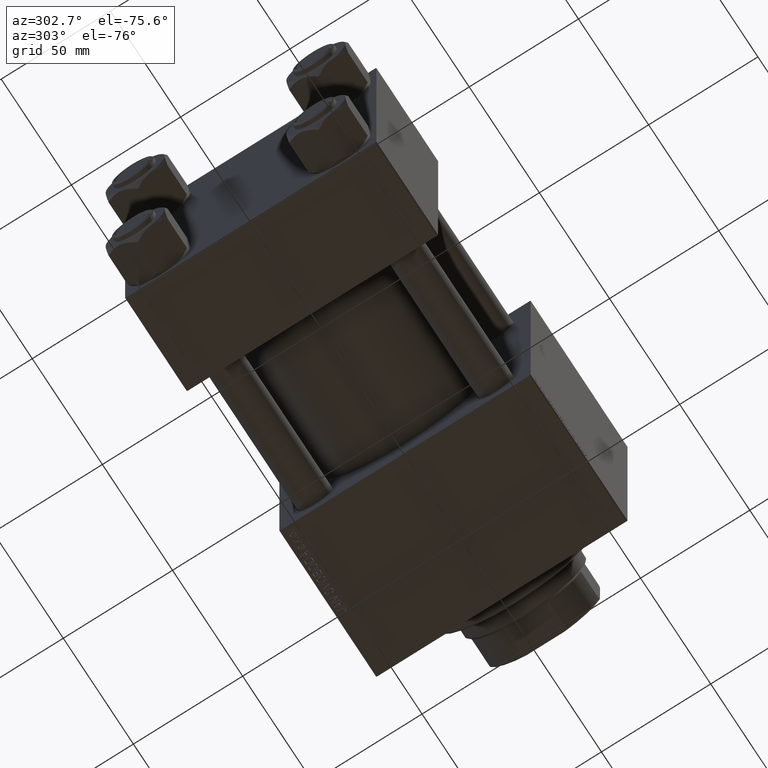
[diagram: clean part render]
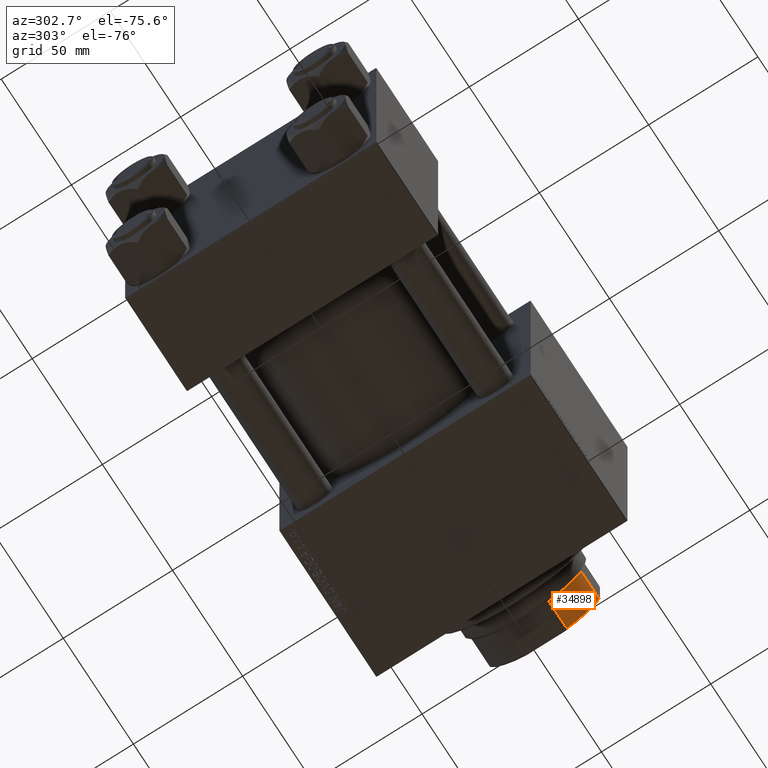
[diagram: same view with one face highlighted and labeled with its STEP entity id]
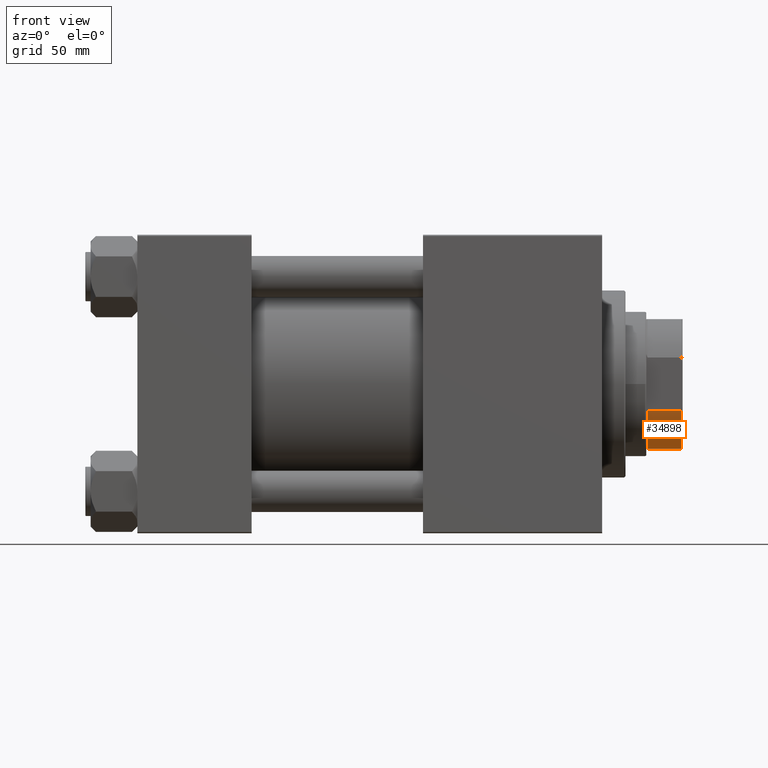
[diagram: same view with one face highlighted and labeled with its STEP entity id]
A machine part, auxiliary view. The second image highlights one B-rep face of the part: STEP entity #34898.
A second angle (front view) of the same face is appended — the face is thin or edge-on in the first view.
In plain terms, the highlighted cylindrical surface (partial cylindrical patch) has radius 27 mm, axis along (1, 0, 0).
Its self-contained STEP definition (entity closure, byte-faithful):
#119 = DIRECTION ( 'NONE',  ( 1.000000000000000000, 0.000000000000000000, 0.000000000000000000 ) ) ;
#921 = DIRECTION ( 'NONE',  ( -0.000000000000000000, -0.000000000000000000, -1.000000000000000000 ) ) ;
#1268 = VERTEX_POINT ( 'NONE', #37615 ) ;
#2549 = DIRECTION ( 'NONE',  ( -1.000000000000000000, 0.000000000000000000, 0.000000000000000000 ) ) ;
#6334 = CARTESIAN_POINT ( 'NONE',  ( 10.19803902718555833, 25.00000000000000355, 152.5000000000000568 ) ) ;
#6698 = CARTESIAN_POINT ( 'NONE',  ( 25.00000000000000000, 10.19803902718555655, -0.001000000000001000089 ) ) ;
#8062 = DIRECTION ( 'NONE',  ( -0.000000000000000000, -0.000000000000000000, 1.000000000000000000 ) ) ;
#10397 = AXIS2_PLACEMENT_3D ( 'NONE', #47779, #921, #31664 ) ;
#11050 = DIRECTION ( 'NONE',  ( -0.000000000000000000, -0.000000000000000000, 1.000000000000000000 ) ) ;
#12124 = AXIS2_PLACEMENT_3D ( 'NONE', #46494, #8062, #119 ) ;
#12828 = CARTESIAN_POINT ( 'NONE',  ( 10.19803902718555655, 24.99999999999999645, -0.001000000000001000089 ) ) ;
#14087 = VECTOR ( 'NONE', #20542, 1000.000000000000000 ) ;
#14348 = VERTEX_POINT ( 'NONE', #45994 ) ;
#14971 = ORIENTED_EDGE ( 'NONE', *, *, #31524, .T. ) ;
#15719 = CIRCLE ( 'NONE', #20661, 26.99999999999999645 ) ;
#20542 = DIRECTION ( 'NONE',  ( -0.000000000000000000, -0.000000000000000000, 1.000000000000000000 ) ) ;
#20661 = AXIS2_PLACEMENT_3D ( 'NONE', #45582, #25619, #2549 ) ;
#23359 = VERTEX_POINT ( 'NONE', #32426 ) ;
#24631 = LINE ( 'NONE', #12828, #14087 ) ;
#25619 = DIRECTION ( 'NONE',  ( -0.000000000000000000, -0.000000000000000000, 1.000000000000000000 ) ) ;
#26281 = ORIENTED_EDGE ( 'NONE', *, *, #37839, .F. ) ;
#27866 = ORIENTED_EDGE ( 'NONE', *, *, #44898, .T. ) ;
#30537 = LINE ( 'NONE', #6698, #36804 ) ;
#31524 = EDGE_CURVE ( 'NONE', #14348, #1268, #42301, .T. ) ;
#31664 = DIRECTION ( 'NONE',  ( 1.000000000000000000, 0.000000000000000000, 0.000000000000000000 ) ) ;
#32426 = CARTESIAN_POINT ( 'NONE',  ( 25.00000000000000000, 10.19803902718555655, 152.5000000000000568 ) ) ;
#34898 = ADVANCED_FACE ( 'NONE', ( #50340 ), #39561, .T. ) ;
#35694 = EDGE_LOOP ( 'NONE', ( #41314, #14971, #26281, #27866 ) ) ;
#36804 = VECTOR ( 'NONE', #11050, 1000.000000000000000 ) ;
#37615 = CARTESIAN_POINT ( 'NONE',  ( 25.00000000000000000, 10.19803902718555655, 165.5000000000000000 ) ) ;
#37839 = EDGE_CURVE ( 'NONE', #23359, #1268, #30537, .T. ) ;
#39561 = CYLINDRICAL_SURFACE ( 'NONE', #12124, 26.99999999999999645 ) ;
#41314 = ORIENTED_EDGE ( 'NONE', *, *, #44780, .T. ) ;
#41748 = VERTEX_POINT ( 'NONE', #6334 ) ;
#42301 = CIRCLE ( 'NONE', #10397, 26.99999999999999645 ) ;
#44780 = EDGE_CURVE ( 'NONE', #41748, #14348, #24631, .T. ) ;
#44898 = EDGE_CURVE ( 'NONE', #23359, #41748, #15719, .T. ) ;
#45582 = CARTESIAN_POINT ( 'NONE',  ( 0.000000000000000000, 0.000000000000000000, 152.5000000000000568 ) ) ;
#45994 = CARTESIAN_POINT ( 'NONE',  ( 10.19803902718555655, 24.99999999999999645, 165.5000000000000000 ) ) ;
#46494 = CARTESIAN_POINT ( 'NONE',  ( 0.000000000000000000, 0.000000000000000000, -0.001000000000001000089 ) ) ;
#47779 = CARTESIAN_POINT ( 'NONE',  ( 0.000000000000000000, 0.000000000000000000, 165.5000000000000000 ) ) ;
#50340 = FACE_OUTER_BOUND ( 'NONE', #35694, .T. ) ;